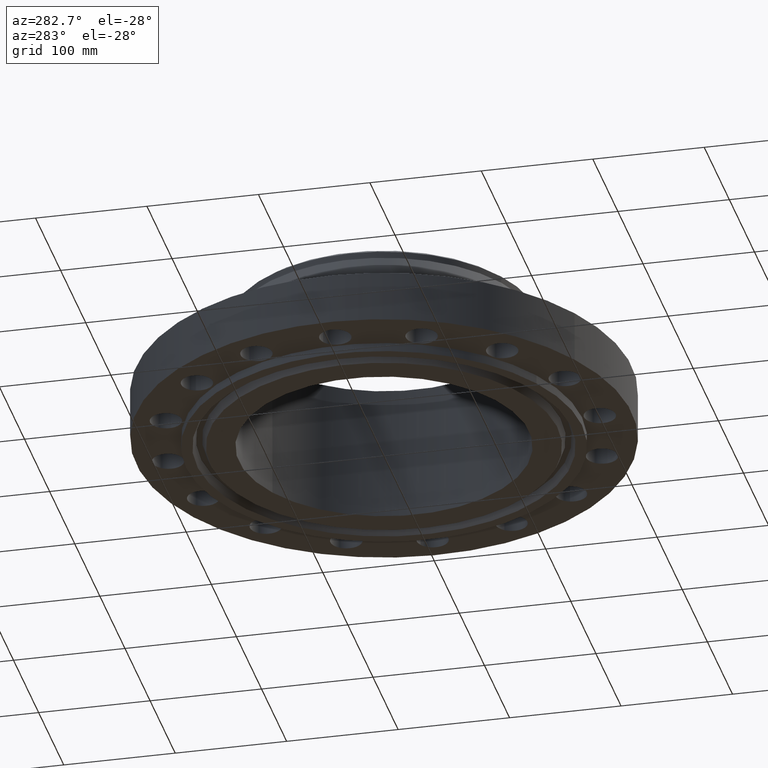
[diagram: clean part render]
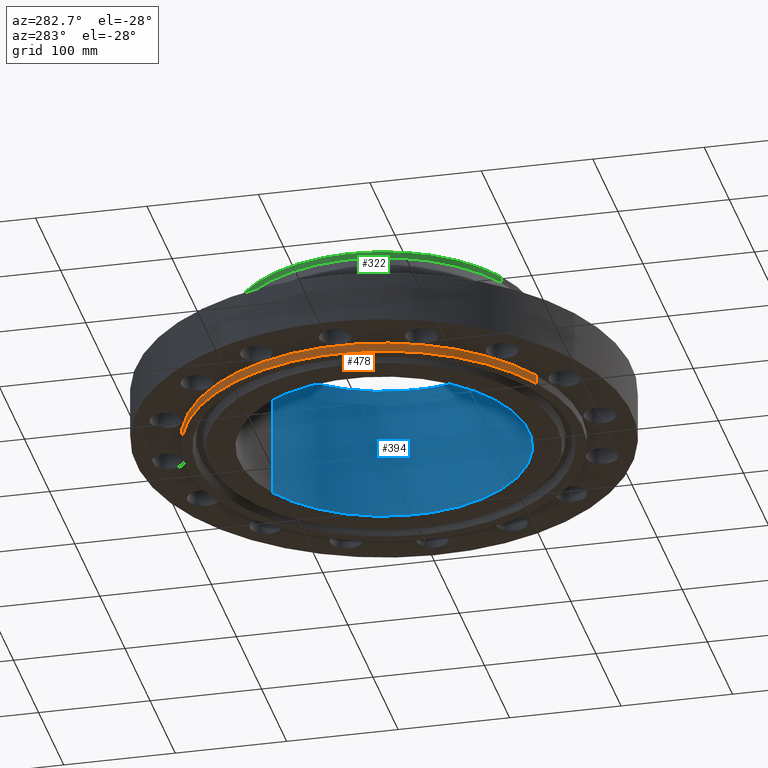
[diagram: same view with three faces highlighted in distinct colors, each labeled with its STEP entity id]
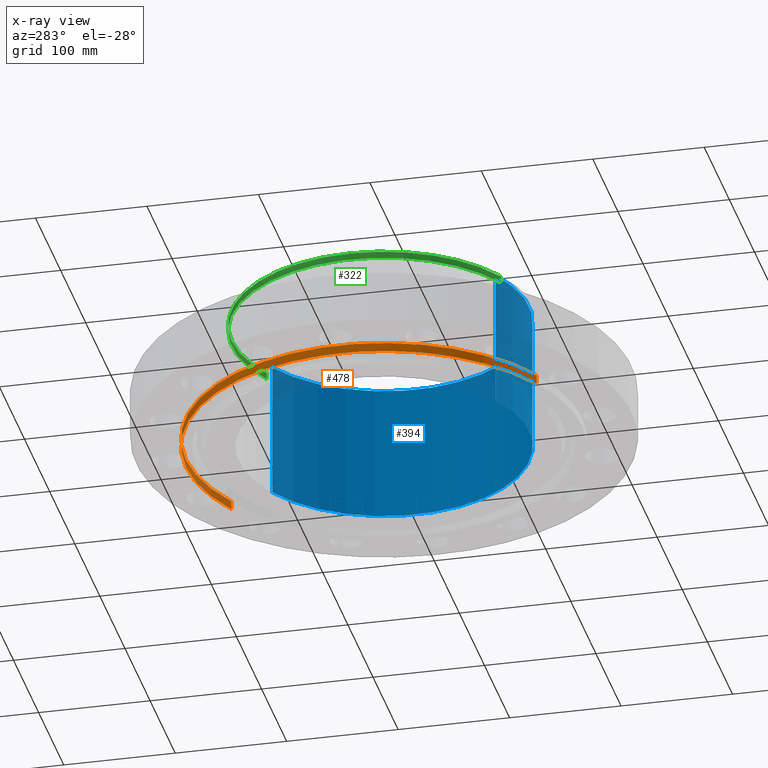
[diagram: x-ray of the same camera — body ghosted, the three highlighted faces saturated]
A machine part, auxiliary view with three faces highlighted in distinct colors.
The next image is the same camera in x-ray (body ghosted, the three faces saturated) — at least one of them is partly hidden behind the body in this view.
Their STEP definitions:

[orange] entity #478 — the highlighted cylindrical surface (partial cylindrical patch) has radius 177.8 mm, axis along (0, 0, -1).
#442=AXIS2_PLACEMENT_3D('Cylinder Axis2P3D',#439,#440,#441) ;
#446=AXIS2_PLACEMENT_3D('Circle Axis2P3D',#444,#445,$) ;
#462=AXIS2_PLACEMENT_3D('Circle Axis2P3D',#460,#461,$) ;
#439=CARTESIAN_POINT('Axis2P3D Location',(0.,0.,2.12350000001)) ;
#444=CARTESIAN_POINT('Axis2P3D Location',(0.,0.,-0.313000000001)) ;
#448=CARTESIAN_POINT('Vertex',(-3.35597877024,-6.14307793326,-0.313000000001)) ;
#450=CARTESIAN_POINT('Vertex',(3.35597877024,6.14307793326,-0.313000000001)) ;
#453=CARTESIAN_POINT('Line Origine',(-3.35597877024,-6.14307793326,-0.156500000001)) ;
#457=CARTESIAN_POINT('Vertex',(-3.35597877024,-6.14307793326,8.39223703654E-016)) ;
#460=CARTESIAN_POINT('Axis2P3D Location',(0.,0.,8.39223703654E-016)) ;
#464=CARTESIAN_POINT('Vertex',(3.35597877024,6.14307793326,8.39223703654E-016)) ;
#467=CARTESIAN_POINT('Line Origine',(3.35597877024,6.14307793326,-0.156500000001)) ;
#440=DIRECTION('Axis2P3D Direction',(0.,0.,-0.0393700787402)) ;
#441=DIRECTION('Axis2P3D XDirection',(0.0188750212049,0.0345504945626,0.)) ;
#445=DIRECTION('Axis2P3D Direction',(0.,0.,-0.0393700787402)) ;
#454=DIRECTION('Vector Direction',(0.,0.,-0.0393700787402)) ;
#461=DIRECTION('Axis2P3D Direction',(0.,0.,-0.0393700787402)) ;
#468=DIRECTION('Vector Direction',(0.,0.,-0.0393700787402)) ;
#455=VECTOR('Line Direction',#454,0.0393700787402) ;
#469=VECTOR('Line Direction',#468,0.0393700787402) ;
#473=ORIENTED_EDGE('',*,*,#452,.F.) ;
#474=ORIENTED_EDGE('',*,*,#459,.T.) ;
#475=ORIENTED_EDGE('',*,*,#466,.T.) ;
#476=ORIENTED_EDGE('',*,*,#471,.F.) ;
#478=ADVANCED_FACE('PartBody',(#477),#443,.T.) ;
#447=CIRCLE('generated circle',#446,7.00000000003) ;
#463=CIRCLE('generated circle',#462,7.00000000003) ;
#443=CYLINDRICAL_SURFACE('generated cylinder',#442,7.00000000003) ;
#452=EDGE_CURVE('',#449,#451,#447,.T.) ;
#459=EDGE_CURVE('',#449,#458,#456,.F.) ;
#466=EDGE_CURVE('',#458,#465,#463,.T.) ;
#471=EDGE_CURVE('',#451,#465,#470,.F.) ;
#472=EDGE_LOOP('',(#473,#474,#475,#476)) ;
#477=FACE_OUTER_BOUND('',#472,.T.) ;
#456=LINE('Line',#453,#455) ;
#470=LINE('Line',#467,#469) ;
#449=VERTEX_POINT('',#448) ;
#451=VERTEX_POINT('',#450) ;
#458=VERTEX_POINT('',#457) ;
#465=VERTEX_POINT('',#464) ;

[blue] entity #394 — the highlighted cylindrical surface (partial cylindrical patch) has radius 130.175 mm, axis along (0, 0, -1).
#358=AXIS2_PLACEMENT_3D('Cylinder Axis2P3D',#355,#356,#357) ;
#362=AXIS2_PLACEMENT_3D('Circle Axis2P3D',#360,#361,$) ;
#378=AXIS2_PLACEMENT_3D('Circle Axis2P3D',#376,#377,$) ;
#355=CARTESIAN_POINT('Axis2P3D Location',(0.,0.,2.12350000001)) ;
#360=CARTESIAN_POINT('Axis2P3D Location',(0.,0.,4.56000000002)) ;
#364=CARTESIAN_POINT('Vertex',(2.45705588536,4.49761062971,4.56000000002)) ;
#366=CARTESIAN_POINT('Vertex',(-2.45705588536,-4.49761062971,4.56000000002)) ;
#369=CARTESIAN_POINT('Line Origine',(2.45705588536,4.49761062971,2.12350000001)) ;
#373=CARTESIAN_POINT('Vertex',(2.45705588536,4.49761062971,-0.313000000001)) ;
#376=CARTESIAN_POINT('Axis2P3D Location',(0.,0.,-0.313000000001)) ;
#380=CARTESIAN_POINT('Vertex',(-2.45705588536,-4.49761062971,-0.313000000001)) ;
#383=CARTESIAN_POINT('Line Origine',(-2.45705588536,-4.49761062971,2.12350000001)) ;
#356=DIRECTION('Axis2P3D Direction',(0.,0.,-0.0393700787402)) ;
#357=DIRECTION('Axis2P3D XDirection',(-0.0188750212049,-0.0345504945626,0.)) ;
#361=DIRECTION('Axis2P3D Direction',(0.,0.,-0.0393700787402)) ;
#370=DIRECTION('Vector Direction',(0.,0.,-0.0393700787402)) ;
#377=DIRECTION('Axis2P3D Direction',(0.,0.,-0.0393700787402)) ;
#384=DIRECTION('Vector Direction',(0.,0.,-0.0393700787402)) ;
#371=VECTOR('Line Direction',#370,0.0393700787402) ;
#385=VECTOR('Line Direction',#384,0.0393700787402) ;
#389=ORIENTED_EDGE('',*,*,#368,.F.) ;
#390=ORIENTED_EDGE('',*,*,#375,.T.) ;
#391=ORIENTED_EDGE('',*,*,#382,.T.) ;
#392=ORIENTED_EDGE('',*,*,#387,.F.) ;
#394=ADVANCED_FACE('PartBody',(#393),#359,.F.) ;
#363=CIRCLE('generated circle',#362,5.12500000002) ;
#379=CIRCLE('generated circle',#378,5.12500000002) ;
#359=CYLINDRICAL_SURFACE('generated cylinder',#358,5.12500000002) ;
#368=EDGE_CURVE('',#365,#367,#363,.T.) ;
#375=EDGE_CURVE('',#365,#374,#372,.T.) ;
#382=EDGE_CURVE('',#374,#381,#379,.T.) ;
#387=EDGE_CURVE('',#367,#381,#386,.T.) ;
#388=EDGE_LOOP('',(#389,#390,#391,#392)) ;
#393=FACE_OUTER_BOUND('',#388,.T.) ;
#372=LINE('Line',#369,#371) ;
#386=LINE('Line',#383,#385) ;
#365=VERTEX_POINT('',#364) ;
#367=VERTEX_POINT('',#366) ;
#374=VERTEX_POINT('',#373) ;
#381=VERTEX_POINT('',#380) ;

[green] entity #322 — the highlighted cylindrical surface (partial cylindrical patch) has radius 136.525 mm, axis along (0, 0, -1).
#254=AXIS2_PLACEMENT_3D('Circle Axis2P3D',#252,#253,$) ;
#267=AXIS2_PLACEMENT_3D('Cylinder Axis2P3D',#264,#265,#266) ;
#305=AXIS2_PLACEMENT_3D('Circle Axis2P3D',#303,#304,$) ;
#312=AXIS2_PLACEMENT_3D('Circle Axis2P3D',#310,#311,$) ;
#230=CARTESIAN_POINT('Vertex',(2.57691227001,4.71700627018,4.19236722845)) ;
#237=CARTESIAN_POINT('Vertex',(-2.57691227001,-4.71700627018,4.19236722845)) ;
#252=CARTESIAN_POINT('Axis2P3D Location',(0.,0.,4.19236722845)) ;
#264=CARTESIAN_POINT('Axis2P3D Location',(0.,0.,2.12350000001)) ;
#269=CARTESIAN_POINT('Line Origine',(-2.57691227001,-4.71700627018,4.31047746467)) ;
#273=CARTESIAN_POINT('Vertex',(-2.57691227001,-4.71700627018,4.4285877009)) ;
#276=CARTESIAN_POINT('Line Origine',(2.57691227001,4.71700627018,4.31047746467)) ;
#280=CARTESIAN_POINT('Vertex',(2.57691227001,4.71700627018,4.4285877009)) ;
#303=CARTESIAN_POINT('Axis2P3D Location',(0.,0.,4.4285877009)) ;
#307=CARTESIAN_POINT('Vertex',(-2.57691227001,4.71700627018,4.4285877009)) ;
#310=CARTESIAN_POINT('Axis2P3D Location',(0.,0.,4.4285877009)) ;
#253=DIRECTION('Axis2P3D Direction',(0.,0.,-0.0393700787402)) ;
#265=DIRECTION('Axis2P3D Direction',(0.,0.,-0.0393700787402)) ;
#266=DIRECTION('Axis2P3D XDirection',(-0.0188750212049,-0.0345504945626,0.)) ;
#270=DIRECTION('Vector Direction',(0.,0.,-0.0393700787402)) ;
#277=DIRECTION('Vector Direction',(0.,0.,-0.0393700787402)) ;
#304=DIRECTION('Axis2P3D Direction',(0.,0.,-0.0393700787402)) ;
#311=DIRECTION('Axis2P3D Direction',(0.,0.,-0.0393700787402)) ;
#271=VECTOR('Line Direction',#270,0.0393700787402) ;
#278=VECTOR('Line Direction',#277,0.0393700787402) ;
#316=ORIENTED_EDGE('',*,*,#282,.F.) ;
#317=ORIENTED_EDGE('',*,*,#256,.F.) ;
#318=ORIENTED_EDGE('',*,*,#275,.T.) ;
#319=ORIENTED_EDGE('',*,*,#309,.F.) ;
#320=ORIENTED_EDGE('',*,*,#314,.T.) ;
#322=ADVANCED_FACE('PartBody',(#321),#268,.T.) ;
#255=CIRCLE('generated circle',#254,5.37500000002) ;
#306=CIRCLE('generated circle',#305,5.37500000002) ;
#313=CIRCLE('generated circle',#312,5.37500000002) ;
#268=CYLINDRICAL_SURFACE('generated cylinder',#267,5.37500000002) ;
#256=EDGE_CURVE('',#238,#231,#255,.T.) ;
#275=EDGE_CURVE('',#238,#274,#272,.F.) ;
#282=EDGE_CURVE('',#231,#281,#279,.F.) ;
#309=EDGE_CURVE('',#308,#274,#306,.F.) ;
#314=EDGE_CURVE('',#308,#281,#313,.T.) ;
#315=EDGE_LOOP('',(#316,#317,#318,#319,#320)) ;
#321=FACE_OUTER_BOUND('',#315,.T.) ;
#272=LINE('Line',#269,#271) ;
#279=LINE('Line',#276,#278) ;
#231=VERTEX_POINT('',#230) ;
#238=VERTEX_POINT('',#237) ;
#274=VERTEX_POINT('',#273) ;
#281=VERTEX_POINT('',#280) ;
#308=VERTEX_POINT('',#307) ;